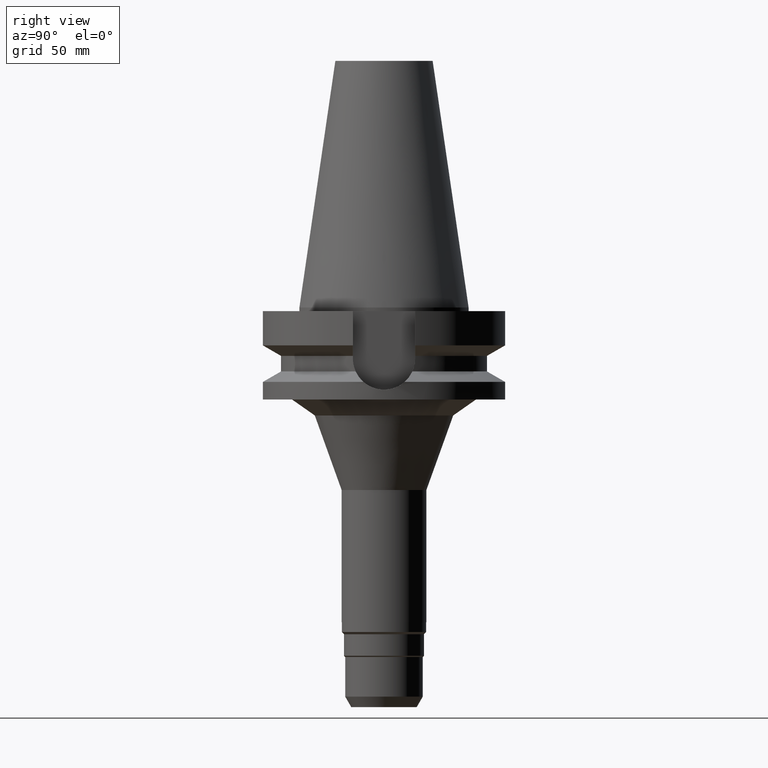
[diagram: clean part render]
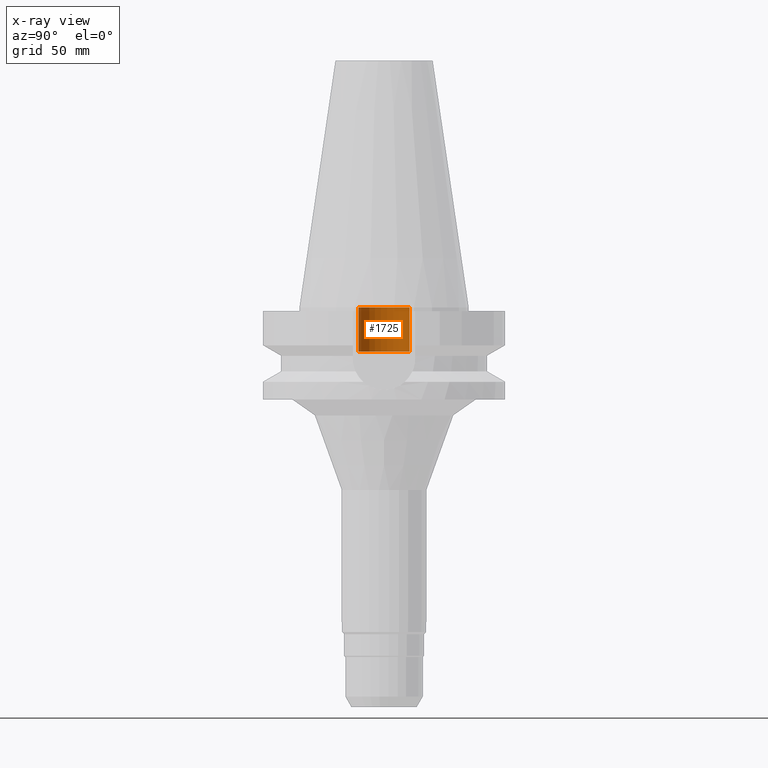
[diagram: x-ray — body ghosted, one internal face saturated and labeled with its STEP entity id]
A machine part, right view, then the same camera in x-ray: the body is ghosted and one INTERNAL B-rep face — a face not visible from any outside direction — is saturated and labeled: STEP entity #1725.
In plain terms, the highlighted cylindrical surface (edge-blend (fillet) strip) has radius 10.6 mm, axis along (0, 0, -1).
Its self-contained STEP definition (entity closure, byte-faithful):
#468=DIRECTION('',(0.E0,0.E0,1.E0));
#469=VECTOR('',#468,1.82E1);
#470=CARTESIAN_POINT('',(0.E0,-1.06E1,-1.82E1));
#471=LINE('',#470,#469);
#472=CARTESIAN_POINT('',(0.E0,2.634705123686E-14,-1.705302565824E-13));
#473=DIRECTION('',(0.E0,0.E0,-1.E0));
#474=DIRECTION('',(0.E0,-1.E0,0.E0));
#475=AXIS2_PLACEMENT_3D('',#472,#473,#474);
#477=DIRECTION('',(0.E0,0.E0,1.E0));
#478=VECTOR('',#477,1.82E1);
#479=CARTESIAN_POINT('',(0.E0,1.06E1,-1.82E1));
#480=LINE('',#479,#478);
#481=CARTESIAN_POINT('',(0.E0,2.634705123686E-14,-1.82E1));
#482=DIRECTION('',(0.E0,0.E0,-1.E0));
#483=DIRECTION('',(0.E0,-1.E0,0.E0));
#484=AXIS2_PLACEMENT_3D('',#481,#482,#483);
#818=CARTESIAN_POINT('',(0.E0,-1.06E1,-1.82E1));
#819=CARTESIAN_POINT('',(0.E0,1.06E1,-1.82E1));
#820=VERTEX_POINT('',#818);
#821=VERTEX_POINT('',#819);
#822=CARTESIAN_POINT('',(0.E0,1.06E1,-1.847411112976E-13));
#823=VERTEX_POINT('',#822);
#824=CARTESIAN_POINT('',(0.E0,-1.06E1,-1.847411112976E-13));
#825=VERTEX_POINT('',#824);
#1711=CARTESIAN_POINT('',(0.E0,2.634705123686E-14,1.1514E2));
#1712=DIRECTION('',(0.E0,0.E0,-1.E0));
#1713=DIRECTION('',(0.E0,-1.E0,0.E0));
#1714=AXIS2_PLACEMENT_3D('',#1711,#1712,#1713);
#1715=CYLINDRICAL_SURFACE('',#1714,1.06E1);
#1717=ORIENTED_EDGE('',*,*,#1716,.F.);
#1719=ORIENTED_EDGE('',*,*,#1718,.F.);
#1721=ORIENTED_EDGE('',*,*,#1720,.T.);
#1722=ORIENTED_EDGE('',*,*,#1697,.T.);
#1723=EDGE_LOOP('',(#1717,#1719,#1721,#1722));
#1724=FACE_OUTER_BOUND('',#1723,.F.);
#476=CIRCLE('',#475,1.06E1);
#485=CIRCLE('',#484,1.06E1);
#1697=EDGE_CURVE('',#825,#823,#476,.T.);
#1716=EDGE_CURVE('',#821,#823,#480,.T.);
#1718=EDGE_CURVE('',#820,#821,#485,.T.);
#1720=EDGE_CURVE('',#820,#825,#471,.T.);
#1725=ADVANCED_FACE('',(#1724),#1715,.F.);